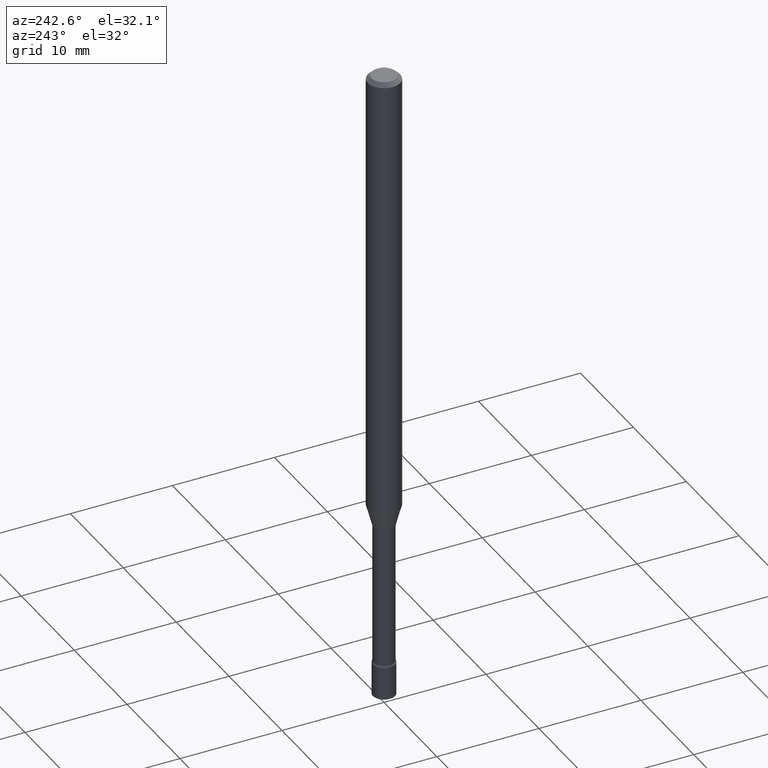
[diagram: clean part render]
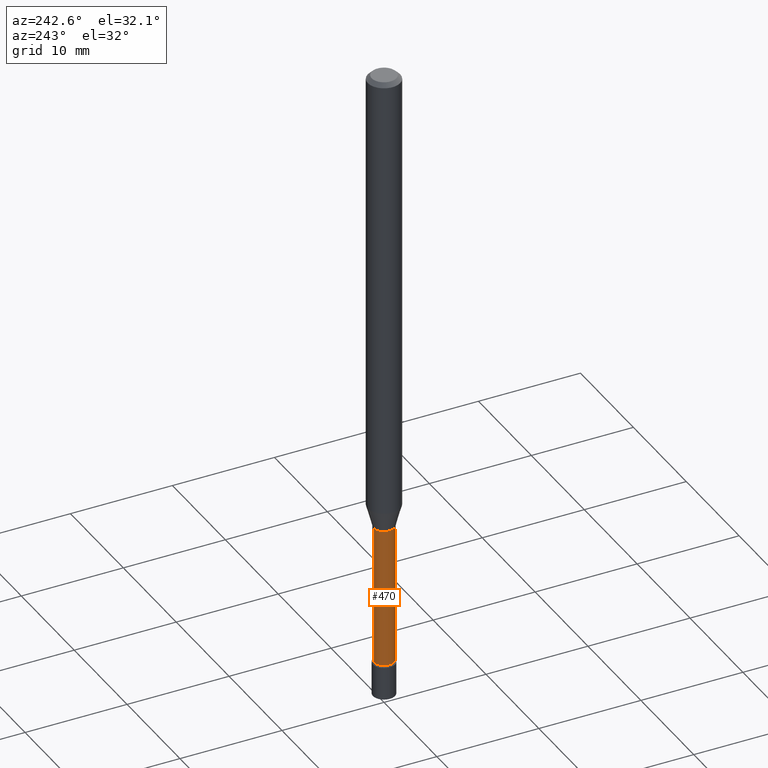
[diagram: same view with one face highlighted and labeled with its STEP entity id]
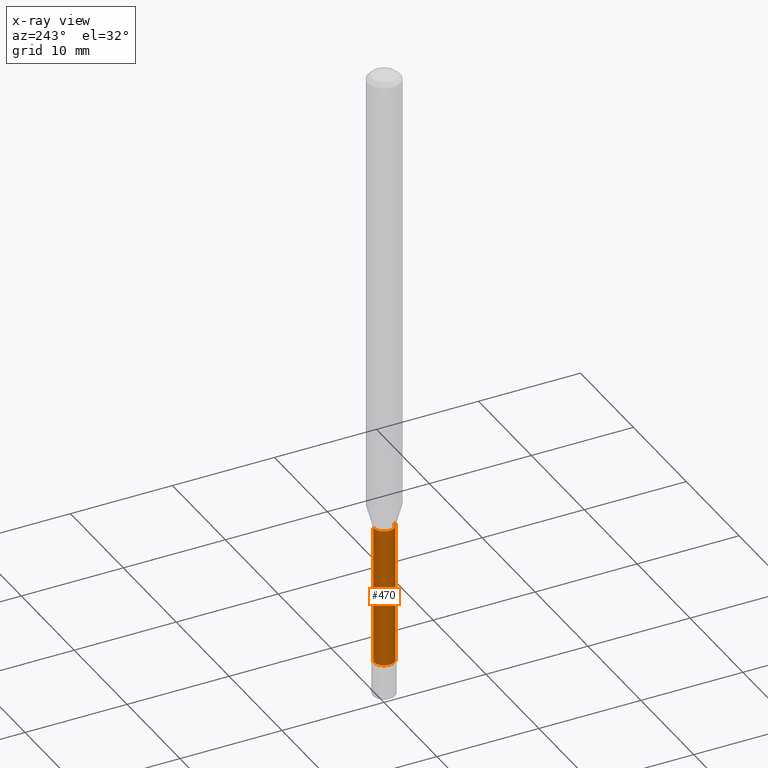
[diagram: x-ray of the same camera — body ghosted, the highlighted face saturated]
A machine part, auxiliary view. The second image highlights one B-rep face of the part: STEP entity #470.
The next image is the same camera in x-ray: the body ghosted, the highlighted face saturated — about 0% of this face is hidden behind the body in this view.
In plain terms, the highlighted cylindrical surface (edge-blend (fillet) strip) has radius 1.0147 mm, axis along (-0, 0, 1).
Its self-contained STEP definition (entity closure, byte-faithful):
#10 = AXIS2_PLACEMENT_3D ( 'NONE', #453, #414, #518 ) ;
#11 = DIRECTION ( 'NONE',  ( -2.445529126728560125E-29, 3.491394956391731301E-15, 1.000000000000000000 ) ) ;
#34 = EDGE_CURVE ( 'NONE', #130, #275, #120, .T. ) ;
#39 = EDGE_CURVE ( 'NONE', #275, #224, #396, .T. ) ;
#54 = ORIENTED_EDGE ( 'NONE', *, *, #39, .T. ) ;
#109 = ORIENTED_EDGE ( 'NONE', *, *, #34, .T. ) ;
#113 = VECTOR ( 'NONE', #11, 39.37007874015748143 ) ;
#120 = CIRCLE ( 'NONE', #376, 0.03995000000000006879 ) ;
#124 = EDGE_CURVE ( 'NONE', #430, #224, #358, .T. ) ;
#130 = VERTEX_POINT ( 'NONE', #253 ) ;
#139 = CYLINDRICAL_SURFACE ( 'NONE', #10, 0.03995000000000004103 ) ;
#158 = ORIENTED_EDGE ( 'NONE', *, *, #124, .F. ) ;
#160 = DIRECTION ( 'NONE',  ( -6.982962677686265133E-15, -1.000000000000000000, 6.838167693777868349E-15 ) ) ;
#218 = CARTESIAN_POINT ( 'NONE',  ( -2.789693589735089879E-16, -0.03995000000000831913, -2.363633549139569023 ) ) ;
#224 = VERTEX_POINT ( 'NONE', #329 ) ;
#226 = CARTESIAN_POINT ( 'NONE',  ( 2.838618229362180999E-16, 0.03994999999999365725, -1.821974787463811474 ) ) ;
#238 = CARTESIAN_POINT ( 'NONE',  ( -2.789693589735665748E-16, -0.03995000000000004103, 1.394812285078498032E-16 ) ) ;
#241 = EDGE_CURVE ( 'NONE', #130, #430, #251, .T. ) ;
#251 = LINE ( 'NONE', #488, #419 ) ;
#253 = CARTESIAN_POINT ( 'NONE',  ( 2.929212428171594149E-16, 0.03994999999999181151, -2.363633549139569912 ) ) ;
#275 = VERTEX_POINT ( 'NONE', #218 ) ;
#278 = DIRECTION ( 'NONE',  ( -2.445529126728560125E-29, 3.491394956391731301E-15, 1.000000000000000000 ) ) ;
#311 = ORIENTED_EDGE ( 'NONE', *, *, #241, .F. ) ;
#323 = CARTESIAN_POINT ( 'NONE',  ( 4.455692410907827704E-29, -6.361233583624047089E-15, -1.821974787463811252 ) ) ;
#329 = CARTESIAN_POINT ( 'NONE',  ( -2.789693589735218069E-16, -0.03995000000000637624, -1.821974787463811030 ) ) ;
#333 = EDGE_LOOP ( 'NONE', ( #311, #109, #54, #158 ) ) ;
#358 = CIRCLE ( 'NONE', #435, 0.03995000000000001328 ) ;
#376 = AXIS2_PLACEMENT_3D ( 'NONE', #515, #477, #160 ) ;
#391 = FACE_OUTER_BOUND ( 'NONE', #333, .T. ) ;
#396 = LINE ( 'NONE', #238, #113 ) ;
#412 = DIRECTION ( 'NONE',  ( -6.982962677686265922E-15, -1.000000000000000000, 6.838167693777877816E-15 ) ) ;
#414 = DIRECTION ( 'NONE',  ( -2.445529126728560125E-29, 3.491394956391731301E-15, 1.000000000000000000 ) ) ;
#419 = VECTOR ( 'NONE', #494, 39.37007874015748143 ) ;
#430 = VERTEX_POINT ( 'NONE', #226 ) ;
#435 = AXIS2_PLACEMENT_3D ( 'NONE', #323, #278, #412 ) ;
#453 = CARTESIAN_POINT ( 'NONE',  ( 0.000000000000000000, 0.000000000000000000, 0.000000000000000000 ) ) ;
#470 = ADVANCED_FACE ( 'NONE', ( #391 ), #139, .T. ) ;
#477 = DIRECTION ( 'NONE',  ( -2.445529126728560125E-29, 3.491394956391731301E-15, 1.000000000000000000 ) ) ;
#488 = CARTESIAN_POINT ( 'NONE',  ( 2.838618229361602665E-16, 0.03995000000000004103, -1.394812285078498032E-16 ) ) ;
#494 = DIRECTION ( 'NONE',  ( -2.445529126728560125E-29, 3.491394956391731301E-15, 1.000000000000000000 ) ) ;
#515 = CARTESIAN_POINT ( 'NONE',  ( 5.780334689333618772E-29, -8.252378252224179636E-15, -2.363633549139569467 ) ) ;
#518 = DIRECTION ( 'NONE',  ( -6.982962677686265133E-15, -1.000000000000000000, 3.491394956391731301E-15 ) ) ;